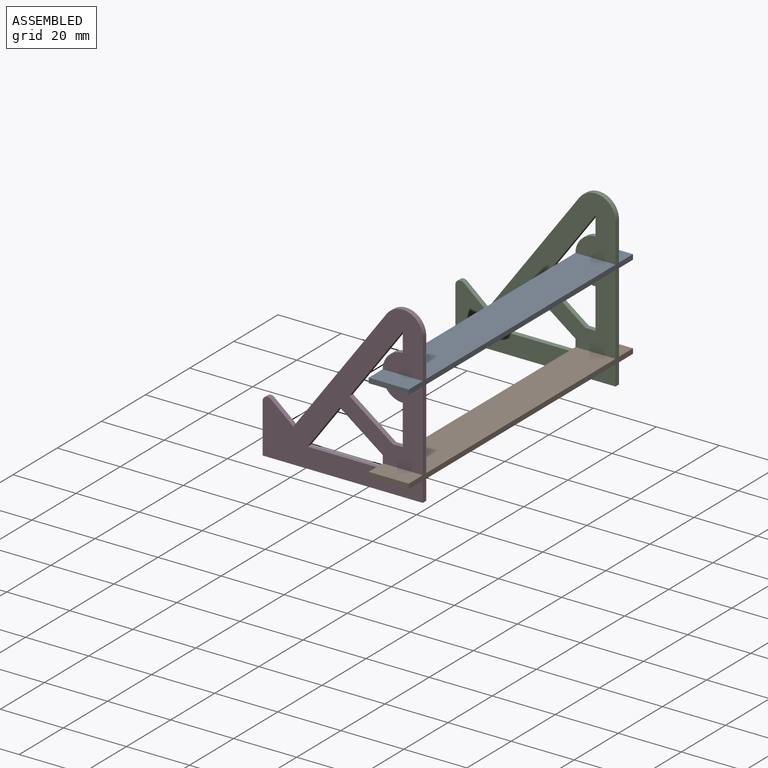
[diagram: assembled view]
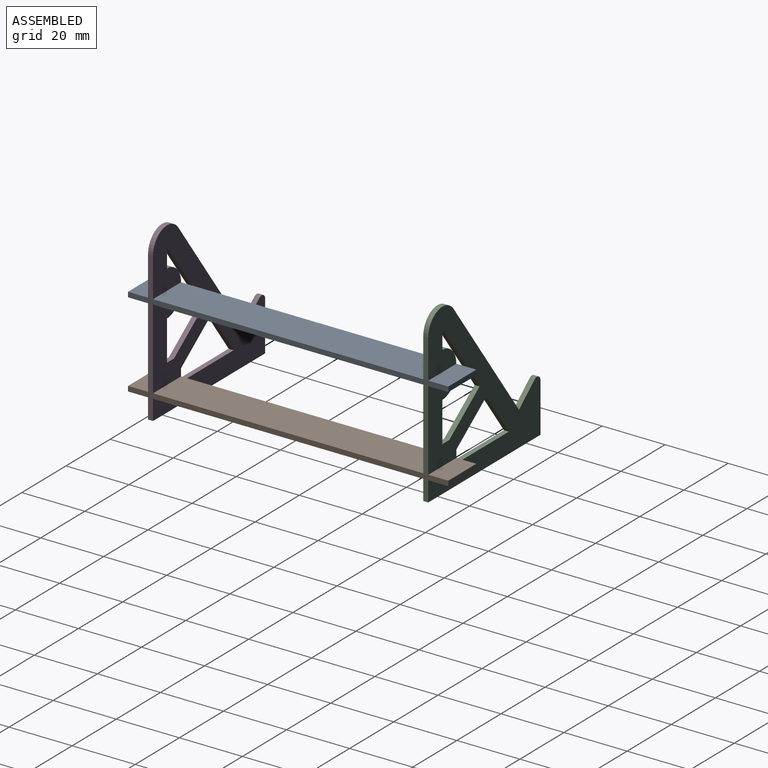
[diagram: assembled view, second angle]
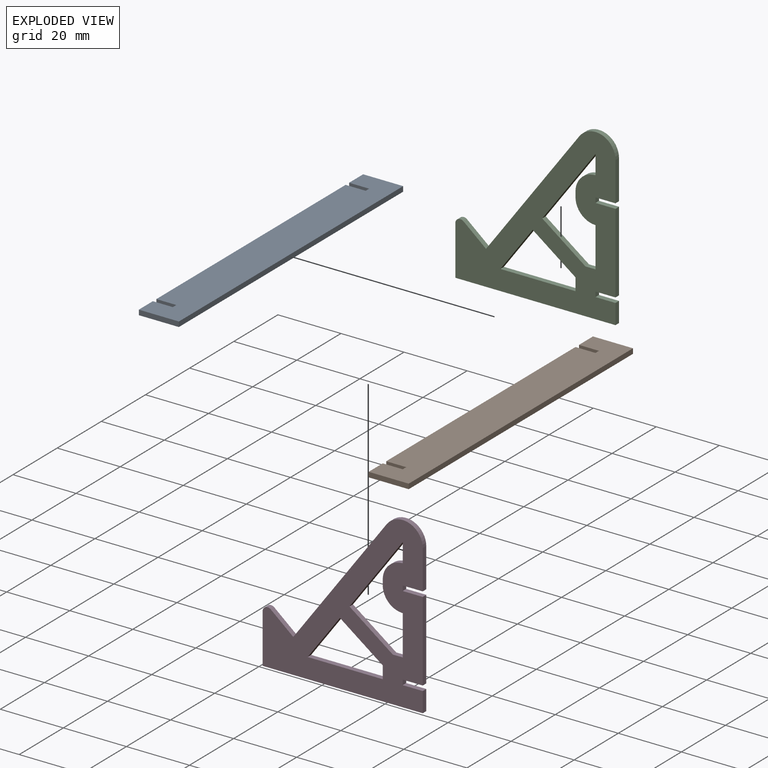
[diagram: exploded view]
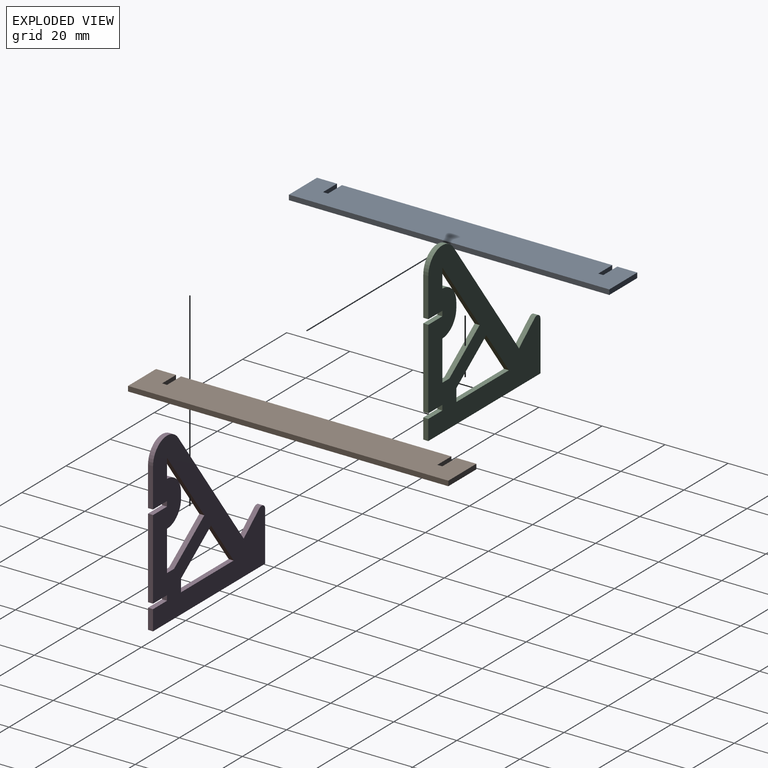
[diagram: exploded view, second angle]
ASSEMBLY  parts=4 mates=3
PART A: 14 faces, bbox 101.6x1.6x12.7 mm
  f0: plane 12.7x1.59mm, normal (-1,0,0), area 20.2mm2, adj f1,f11,f12,f13
  f1: plane 101.6x1.59mm, normal (0,0,-1), area 161.3mm2, adj f0,f2,f12,f13
  f2: plane 12.7x1.59mm, normal (1,0,0), area 20.2mm2, adj f1,f3,f12,f13
  f3: plane 6.35x1.59mm, normal (0,0,1), area 10.1mm2, adj f2,f4,f12,f13
  f4: plane 6.35x1.59mm, normal (-1,0,0), area 10.1mm2, adj f3,f5,f12,f13
  f5: plane 1.59x1.59mm, normal (0,0,1), area 2.5mm2, adj f4,f6,f12,f13
  f6: plane 6.35x1.59mm, normal (1,0,0), area 10.1mm2, adj f5,f7,f12,f13
  f7: plane 85.73x1.59mm, normal (0,0,1), area 136.1mm2, adj f6,f8,f12,f13
  f8: plane 6.35x1.59mm, normal (-1,0,0), area 10.1mm2, adj f7,f9,f12,f13
  f9: plane 1.59x1.59mm, normal (0,0,1), area 2.5mm2, adj f8,f10,f12,f13
  f10: plane 6.35x1.59mm, normal (1,0,0), area 10.1mm2, adj f9,f11,f12,f13
  f11: plane 6.35x1.59mm, normal (0,0,1), area 10.1mm2, adj f0,f10,f12,f13
  f12: plane 101.6x12.7mm, normal (0,-1,0), area 1270.2mm2, adj f0,f1,f2,f3,f4,f5,f6,f7
  f13: plane 101.6x12.7mm, normal (0,1,0), area 1270.2mm2, adj f0,f1,f2,f3,f4,f5,f6,f7
PART B: same geometry as A
PART C: 29 faces, bbox 50.8x1.6x53.7 mm
  f0: plane 13.95x10.27mm, normal (0.81,0,-0.59), area 27.5mm2, adj f1,f24,f25,f26
  f1: plane 13.56x9.98mm, normal (-0.59,0,-0.81), area 26.7mm2, adj f0,f2,f25,f26
  f2: plane 3.97x1.59mm, normal (-1,0,0), area 6.3mm2, adj f1,f24,f25,f26
  f3: plane 6.35x1.59mm, normal (0,0,-1), area 10.1mm2, adj f4,f22,f25,f26
  f4: plane 25.4x1.59mm, normal (1,0,0), area 40.3mm2, adj f3,f5,f25,f26
  f5: plane 6.35x1.59mm, normal (0,0,1), area 10.1mm2, adj f4,f6,f25,f26
  f6: plane 1.59x1.59mm, normal (1,0,0), area 2.5mm2, adj f5,f7,f25,f26
  f7: plane 6.35x1.59mm, normal (0,0,-1), area 10.1mm2, adj f6,f8,f25,f26
  f8: plane 12.41x1.59mm, normal (1,0,0), area 19.7mm2, adj f7,f25,f26,f28
  f9: plane 40.22x29.61mm, normal (-0.81,0,0.59), area 79.3mm2, adj f10,f25,f26,f28
  f10: plane 7.12x5.98mm, normal (0.64,0,0.77), area 14.8mm2, adj f9,f25,f26,f27
  f11: plane 15.65x1.59mm, normal (-1,0,0), area 24.8mm2, adj f12,f25,f26,f27
  f12: plane 50.8x1.59mm, normal (0,0,-1), area 80.6mm2, adj f11,f13,f25,f26
  f13: plane 6.35x1.59mm, normal (1,0,0), area 10.1mm2, adj f12,f14,f25,f26
  f14: plane 6.35x1.59mm, normal (0,0,1), area 10.1mm2, adj f13,f22,f25,f26
  f15: plane 13.72x10.1mm, normal (0.59,0,0.81), area 27mm2, adj f16,f23,f25,f26
  f16: plane 22.95x16.9mm, normal (0.81,0,-0.59), area 45.2mm2, adj f15,f17,f25,f26
  f17: plane 6.06x1.59mm, normal (-1,0,0), area 9.6mm2, adj f16,f18,f25,f26
  f18: cylinder r=6.35mm len=6.35mm, axis (0,1,0), area 15.8mm2, adj f17,f19,f25,f26
  f19: plane 1.59x1.59mm, normal (-1,0,0), area 2.5mm2, adj f18,f20,f25,f26
  f20: cylinder r=6.35mm len=6.35mm, axis (0,1,0), area 15.8mm2, adj f19,f21,f25,f26
  f21: plane 12.7x1.59mm, normal (-1,0,0), area 20.2mm2, adj f20,f23,f25,f26
  f22: plane 1.59x1.59mm, normal (1,0,0), area 2.5mm2, adj f3,f14,f25,f26
  f23: plane 3.18x1.59mm, normal (0,0,1), area 5mm2, adj f15,f21,f25,f26
  f24: plane 23.83x1.59mm, normal (0,0,1), area 37.8mm2, adj f0,f2,f25,f26
  f25: plane 53.69x50.8mm, normal (0,-1,0), area 1228.5mm2, adj f0,f1,f2,f3,f4,f5,f6,f7
  f26: plane 53.69x50.8mm, normal (0,1,0), area 1228.5mm2, adj f0,f1,f2,f3,f4,f5,f6,f7
  f27: cylinder r=1.59mm len=2.61mm, axis (0,1,0), area 5.7mm2, adj f10,f11,f25,f26
  f28: cylinder r=6.35mm len=11.46mm, axis (0,1,0), area 25.3mm2, adj f8,f9,f25,f26
PART D: same geometry as C
PLACE A rot(axis=(-0.58,-0.58,0.58),120deg) t=(-7.12,-24.16,16.67)mm
PLACE B rot(axis=(-0.58,-0.58,0.58),120deg) t=(-7.12,-24.16,-10.32)mm
PLACE C t=(-6.35,86.52,-16.67)mm
PLACE D t=(-6.35,-0.79,-16.67)mm
MATE fastened C.f6 <-> A.f5  axis (1,0,0) through (-12.7,85.73,17.46)mm
MATE fastened B.f9 <-> D.f22  axis (-1,0,0) through (-12.7,-1.59,-9.53)mm
MATE fastened A.f9 <-> D.f6  axis (-1,0,0) through (-12.7,-1.59,17.46)mm
